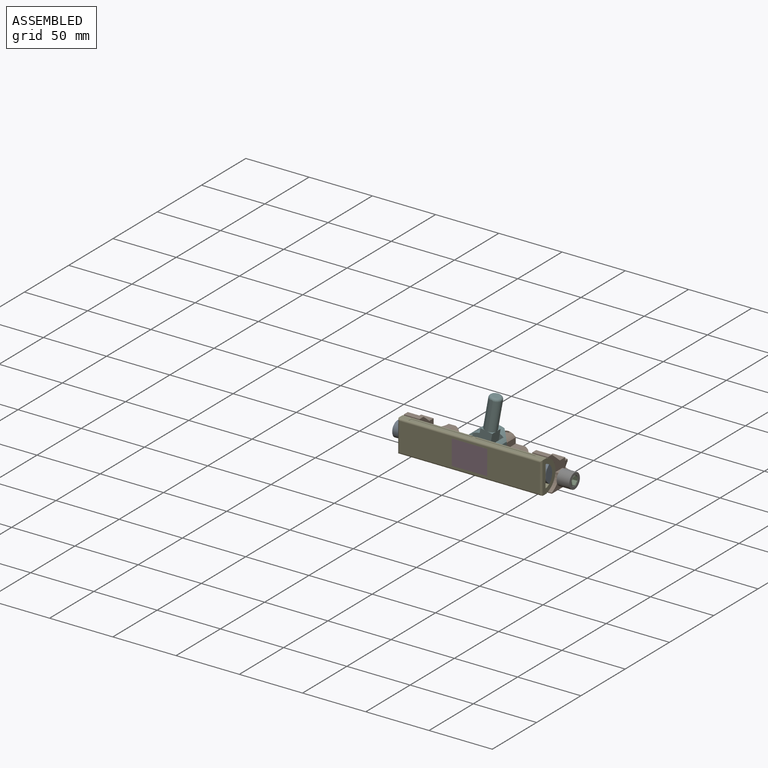
[diagram: assembled view]
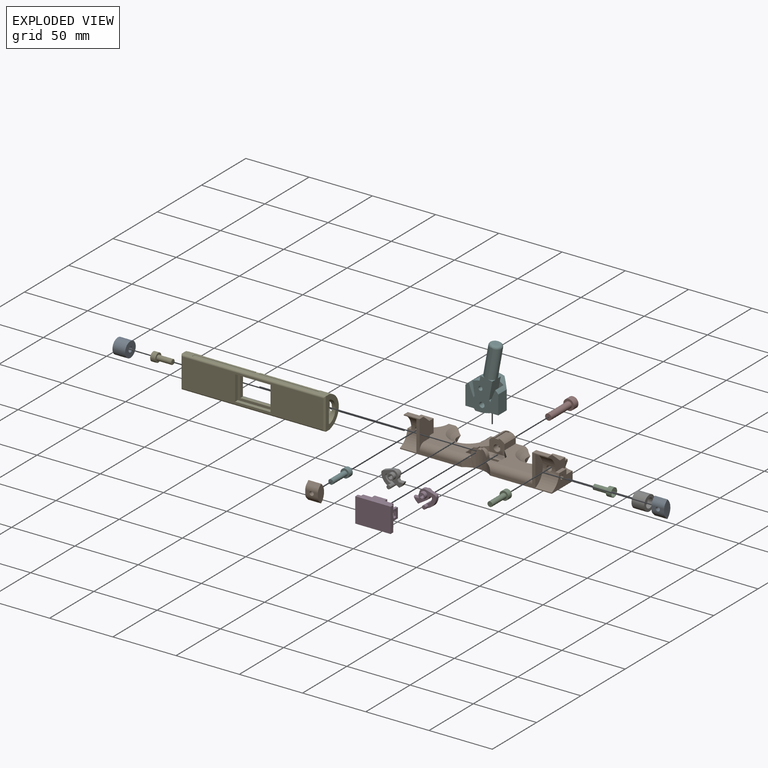
[diagram: exploded view]
GUIDED TOUR — MATED ASSEMBLY WITH SUBASSEMBLIES (Onshape document 3f575c8c6adcad1ca277dd56, AutoMate assembly 3f575c8c6adcad1ca277dd56_c90ff8e94e7f5d9ac81e3531_324395625136054d24e18bfe_default)

This assembly has 16 component occurrences arranged in 15 top-level units: 14 individual components plus 1 subassembly (S0). The tour has two levels: first the top level, where each subassembly is treated as one rigid unit; then each subassembly is toured internally in its own section (nesting deeper than one subassembly level is flattened into its subassembly's section).

Components are labeled P0..P15 across the whole record; subassembly units are labeled S0..S0. A mate is a constraint between two units; its type names the relative motion it leaves free:
  FASTENED — locks the two components together rigidly (no relative motion),
  REVOLUTE — leaves rotation about the listed axis free (a hinge),
  SLIDER — leaves translation along the listed axis free.
Axis/direction vectors are unit vectors and 'through' points are millimeter coordinates, both in the assembly's world frame.

TOP-LEVEL MATES (between units; each subassembly's internal mates are listed in its own section)
  1. REVOLUTE "Revolute 2": P15 <-> P4, axis (0.000, -1.000, 0.003) through (-16.70, -12.69, 11.49) mm
  2. FASTENED "Fastened 6": P10 <-> P9, direction (-1.000, 0.000, 0.000) through (-60.00, 0.00, 0.00) mm
  3. FASTENED "Fastened 7": P7 <-> P10, direction (-1.000, 0.000, 0.000) through (60.00, 0.00, 0.00) mm
  4. FASTENED "Fastened 3": P10 <-> P8, direction (0.000, 1.000, 0.000) through (0.00, 18.50, 0.00) mm
  5. FASTENED "Fastened 2": P10 <-> S0, direction (0.000, 0.000, 1.000) through (-13.00, -4.75, -4.00) mm
  6. FASTENED "Fastened 5": P10 <-> P11, direction (0.000, 1.000, 0.000) through (52.00, 2.00, 5.20) mm
  7. FASTENED "Fastened 8": P7 <-> P2, direction (1.000, 0.000, 0.000) through (66.00, 0.00, 0.00) mm
  8. FASTENED "Fastened 9": P13 <-> P9, direction (1.000, 0.000, 0.000) through (-66.00, 0.00, 0.00) mm
  9. FASTENED "Fastened 4": P10 <-> P14, direction (0.000, 1.000, 0.000) through (-52.00, 2.00, 5.20) mm
  10. REVOLUTE "Revolute 1": P4 <-> P10, axis (-1.000, 0.000, 0.000) through (47.00, -15.71, 5.20) mm
  11. FASTENED "Fastened 1": P12 <-> P4, direction (0.000, -1.000, 0.003) through (-12.00, -15.74, -2.50) mm
  12. REVOLUTE "Revolute 3": P3 <-> P4, axis (0.000, -1.000, 0.003) through (16.70, -12.69, 11.49) mm
  13. SLIDER "Slider 1": P14 <-> P1, axis (0.000, 1.000, 0.000) through (-52.00, -13.75, 5.20) mm

TOP-LEVEL ASSEMBLY ORDER
  1. P10 — the base component [order heuristic]
  2. P4 — core [order heuristic]
  3. S0 — core [order heuristic]
  4. P2 — core [order heuristic]
  5. P8 — core [order heuristic]
  6. P13 — core [order heuristic]
  7. P11 — core [order heuristic]
  8. P14 — core [order heuristic]
  9. P7 — core [order heuristic]
  10. P3 — core [order heuristic]
  11. P12 — core [order heuristic]
  12. P9 — core [order heuristic]
  13. P15 — core [order heuristic]
  14. P0 [order verified]
  15. P1 [order verified]
Order-tag legend:
  [order verified] — this step's position reverses a verified removal order: the component was checked to insert without passing through the ones already placed.
  [order heuristic] — the first 13 components form the assembly's core: parts whose collision-free extraction could not be verified, listed in mate-graph order.

Of the 16 component occurrences, 1 carries the full construction recipe — the FeatureScript program that regenerates the part's solid from scratch; the rest are supplied as boundary geometry only. Each toured unit is shown spotlighted twice — assembled, then exploded with a leader line back to its socket (green = recipe-attached component, orange = geometry-only, blue = subassembly unit; the rest desaturated gray).
NOTE — document 2 of 2 of this assembly tour. The two overview renders and the header above are repeated from document 1; the component sections below continue where the previous document stopped.
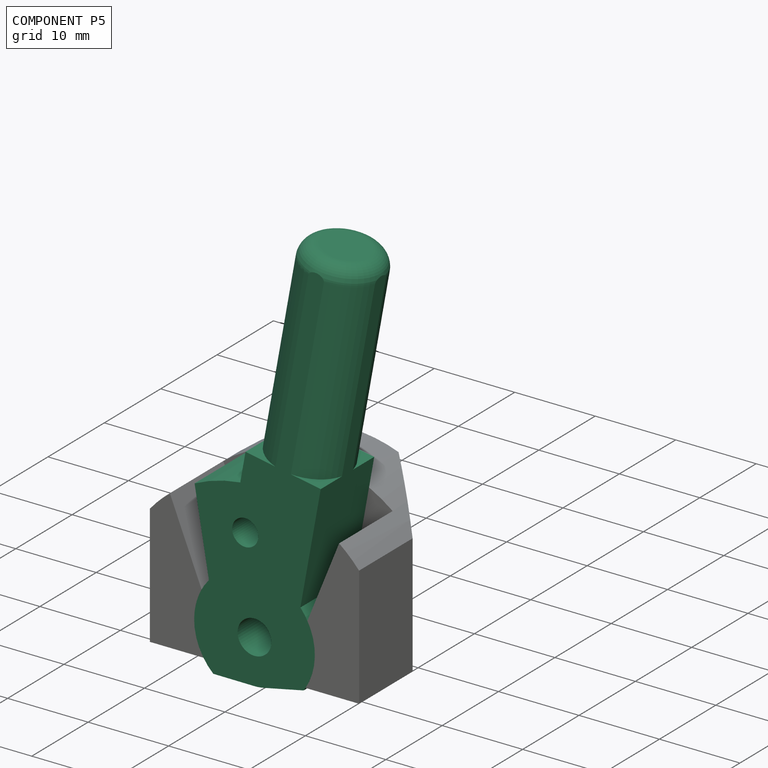
[diagram: component P5 — assembled]
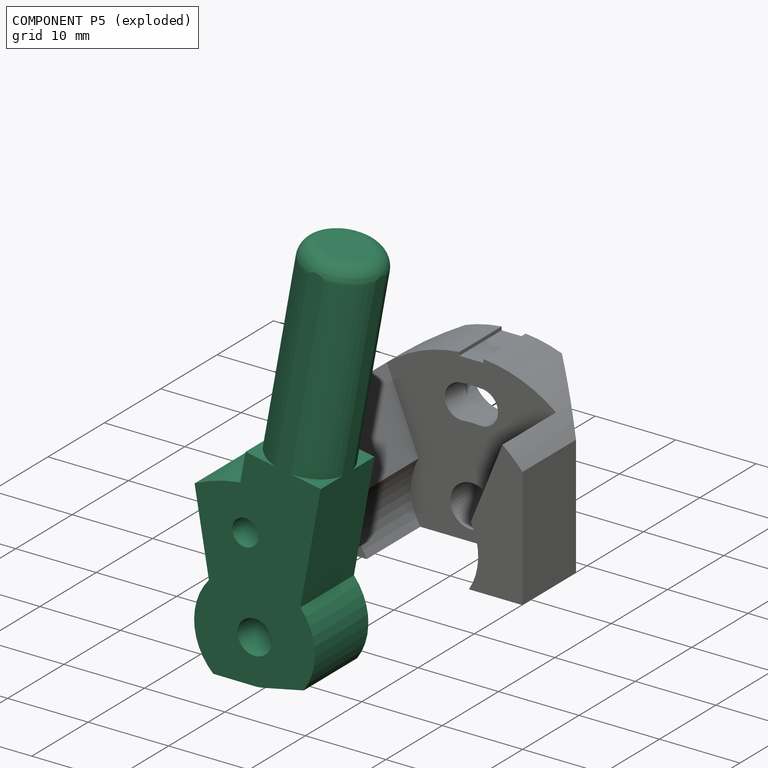
[diagram: component P5 — exploded]
COMPONENT P5 — recipe-attached (CADFS 00691312, mesh-verified: the recipe's output STEP matches this component's geometry to below the mesh-comparison resolution (tessellation chordal tolerance ~0.0824 mm)).
Held by: REVOLUTE mate "Revolute 1" to P6; REVOLUTE mate "Revolute 1" to P6.
Construction recipe (FeatureScript — the CAD program that rebuilds this solid; sketch coordinates are in the units given by the * unit suffixes, e.g. mm):

FeatureScript 1511;
import(path : "onshape/std/geometry.fs", version : "1511.0");
import(path : "onshape/std/common.fs", version : "1511.0");
const mm = millimeter;
const VERTEX = EntityType.VERTEX;
const EDGE = EntityType.EDGE;
const FACE = EntityType.FACE;
const BODY = EntityType.BODY;
function v(x, y){return vector(x, y);}
function OD(order){return orderDisambiguation(order);}
function OSD(set){return originalSetDisambiguation(set);}
function TD(topology){return topologyDisambiguation(topology);}
function TDD(query){return trueDependencyDisambiguation(query);}
function sQuery(a, b, c) {return sketchEntityQuery(a, b, c);}

annotation { "Feature Type Name" : "Feature", "Feature Type Description" : "" }
export const myFeature = defineFeature(function(context is Context, id is Id, definition is map)
    precondition{}
    {
        {
            var Q0;
            Q0=qCreatedBy(makeId("Front.planeOp"),FACE);
            var sketch = newSketch(context, id + "F0", { "sketchPlane" : qUnion([Q0])});
            skLineSegment(sketch, "E0.top", {"start": v(-21.4, -7.5) * mm, "end": v(21.4, -7.5) * mm});
            skLineSegment(sketch, "E0.left", {"start": v(-21.4, 17.9) * mm, "end": v(-21.4, -7.5) * mm, "construction": true});
            skLineSegment(sketch, "E0.right", {"start": v(21.4, 17.9) * mm, "end": v(21.4, -7.5) * mm});
            skCircle(sketch, "E1", {"center": v(0, 0) * mm, "radius": 2.1 * mm});
            skCircle(sketch, "E2", {"center": v(0, 0) * mm, "radius": 7.5 * mm});
            skLineSegment(sketch, "E3", {"start": v(0, 0) * mm, "end": v(13.06, 74.1) * mm, "construction": true});
            skLineSegment(sketch, "E4", {"start": v(10.99, 62.3) * mm, "end": v(6.3, 63.13) * mm});
            skLineSegment(sketch, "E5.MirrorCS", {"start": v(10.99, 62.3) * mm, "end": v(15.66, 61.48) * mm});
            skLineSegment(sketch, "E6", {"start": v(6.3, 63.13) * mm, "end": v(2, 38.7) * mm});
            skLineSegment(sketch, "E7", {"start": v(2, 38.7) * mm, "end": v(11.36, 37.05) * mm});
            skPoint(sketch, "E7.endSnap0", {"position": v(6.53, 37.05) * mm});
            skLineSegment(sketch, "E8", {"start": v(11.36, 37.05) * mm, "end": v(15.66, 61.48) * mm});
            skLineSegment(sketch, "E9", {"start": v(-66.42, 0) * mm, "end": v(-66.42, -3.81) * mm, "construction": true});
            skLineSegment(sketch, "E10", {"start": v(-49.76, -7.5) * mm, "end": v(-49.76, -3.5) * mm, "construction": true});
            skLineSegment(sketch, "E11", {"start": v(-49.76, -3.5) * mm, "end": v(40.68, -3.5) * mm, "construction": true});
            skLineSegment(sketch, "E12", {"start": v(-46.54, -7.5) * mm, "end": v(-46.54, -5.5) * mm, "construction": true});
            skLineSegment(sketch, "E13", {"start": v(-46.54, -5.5) * mm, "end": v(40.68, -5.5) * mm, "construction": true});
            skLineSegment(sketch, "E14", {"start": v(-21.4, -3.5) * mm, "end": v(21.4, -3.5) * mm});
            skLineSegment(sketch, "E15", {"start": v(0, 0) * mm, "end": v(27.45, 67.94) * mm, "construction": true});
            skLineSegment(sketch, "E16", {"start": v(0, 0) * mm, "end": v(3.52, 33.49) * mm, "construction": true});
            skLineSegment(sketch, "E17", {"start": v(0, 0) * mm, "end": v(-3.56, 33.9) * mm, "construction": true});
            skArc(sketch, "E18", {"start": v(-7.34, 8.85) * mm, "mid": v(0.93, 11.46) * mm, "end": v(8.67, 7.55) * mm, "construction": true});
            skCircle(sketch, "E19", {"center": v(-1.2, 11.44) * mm, "radius": 1.63 * mm});
            skCircle(sketch, "E20", {"center": v(-1.2, 11.44) * mm, "radius": 4 * mm, "construction": true});
            skArc(sketch, "E21", {"start": v(-9.57, 14.05) * mm, "mid": v(-1.2, 16.96) * mm, "end": v(7.5, 15.26) * mm, "construction": true});
            skLineSegment(sketch, "E22", {"start": v(0, 13.36) * mm, "end": v(-7.51, 13.36) * mm, "construction": true});
            skLineSegment(sketch, "E23", {"start": v(2, 38.7) * mm, "end": v(-1.84, 16.9) * mm, "construction": true});
            skLineSegment(sketch, "E24", {"start": v(11.36, 37.05) * mm, "end": v(7.51, 15.25) * mm, "construction": true});
            skLineSegment(sketch, "E25", {"start": v(3.47, 19.7) * mm, "end": v(8.15, 18.87) * mm, "construction": true});
            skLineSegment(sketch, "E26", {"start": v(8.15, 18.87) * mm, "end": v(-1.2, 20.52) * mm});
            skLineSegment(sketch, "E27", {"start": v(-1.2, 20.52) * mm, "end": v(-1.84, 16.9) * mm});
            skLineSegment(sketch, "E28", {"start": v(8.15, 18.87) * mm, "end": v(7.51, 15.25) * mm});
            skArc(sketch, "E29", {"start": v(-7.51, 15.25) * mm, "mid": v(-4.72, 16.33) * mm, "end": v(-1.78, 16.9) * mm});
            skLineSegment(sketch, "E30", {"start": v(0, 0) * mm, "end": v(53.18, -11.3) * mm, "construction": true});
            skLineSegment(sketch, "E31", {"start": v(7.51, 15.25) * mm, "end": v(5.69, 4.9) * mm});
            skLineSegment(sketch, "E32", {"start": v(0, 0) * mm, "end": v(5.69, 4.9) * mm, "construction": true});
            skLineSegment(sketch, "E33", {"start": v(0, 0) * mm, "end": v(30.44, 16.67) * mm, "construction": true});
            skLineSegment(sketch, "E34", {"start": v(-5.1, -5.5) * mm, "end": v(0, -5.5) * mm});
            skLineSegment(sketch, "E35", {"start": v(0, 0) * mm, "end": v(5.1, -5.5) * mm, "construction": true});
            skLineSegment(sketch, "E36", {"start": v(0, 0) * mm, "end": v(15.5, -10.92) * mm, "construction": true});
            skLineSegment(sketch, "E37.MirrorCS", {"start": v(0, 0) * mm, "end": v(-5.69, 4.9) * mm, "construction": true});
            skLineSegment(sketch, "E38", {"start": v(-7.51, 15.25) * mm, "end": v(-5.69, 4.9) * mm});
            skLineSegment(sketch, "E39", {"start": v(11.36, 37.05) * mm, "end": v(5.69, 4.9) * mm});
            skLineSegment(sketch, "E40", {"start": v(0, 0) * mm, "end": v(1.85, -8.7) * mm, "construction": true});
            skArc(sketch, "E41", {"start": v(0, -5.5) * mm, "mid": v(0.57, -5.47) * mm, "end": v(1.14, -5.38) * mm});
            skLineSegment(sketch, "E42", {"start": v(1.14, -5.38) * mm, "end": v(6.13, -4.32) * mm});
            skSolve(sketch);
        }
        {
            var Q0;
            {var subQ5=sQuery(id+"F0.wireOp",EDGE,"E26");Q0=makeQuery(id+"F0.imprint","IMPRINT",FACE,{"disambiguationData":[TD([[makeQuery(id+"F0.imprint","IMPRINT",EDGE,{"derivedFrom":subQ5}),1.0]])]});}
            var Q1;
            {var subQ8=sQuery(id+"F0.wireOp",EDGE,"dcc9mgXF-Am9R-e9oT-sTfc-VprgwdTA8qZ0");Q1=makeQuery(id+"F0.imprint","IMPRINT",FACE,{"disambiguationData":[TD([[makeQuery(id+"F0.imprint","IMPRINT",EDGE,{"derivedFrom":subQ8}),1.0]])]});}
            var Q2;
            Q2=makeQuery(id+"F0.imprint","IMPRINT",FACE,{"disambiguationData":[TD([[makeQuery(id+"F0.imprint","IMPRINT",EDGE,{"derivedFrom":sQuery(id+"F0.wireOp",EDGE,"E1")}),-1.0]])]});
            var Q3;
            {var subQ0=sQuery(id+"F0.wireOp",EDGE,"E34");Q3=makeQuery(id+"F0.imprint","IMPRINT",FACE,{"disambiguationData":[TD([[makeQuery(id+"F0.imprint","IMPRINT",EDGE,{"derivedFrom":subQ0}),1.0]])]});}
            extrude(context, id + "F1", {"entities" : qUnion([Q0, Q1, Q2, Q3]), "depth" : 9.5 * mm, "offsetDistance" : 25 * mm});
        }
        {
            var Q0;
            Q0=makeQuery(id+"F1.opExtrude","SWEPT_FACE",FACE,{"disambiguationData":[OSD([sQuery(id+"F0.wireOp",EDGE,"E26")])]});
            var sketch = newSketch(context, id + "F2", { "sketchPlane" : qUnion([Q0])});
            skLineSegment(sketch, "E43", {"start": v(0, 0) * mm, "end": v(0, -9.5) * mm, "construction": true});
            skLineSegment(sketch, "E44", {"start": v(-4.75, -4.75) * mm, "end": v(4.75, -4.75) * mm, "construction": true});
            skCircle(sketch, "E45", {"center": v(0, -4.75) * mm, "radius": 4.85 * mm});
            skSolve(sketch);
        }
        {
            var Q0;
            {var subQ0=sQuery(id+"F2.wireOp",EDGE,"E45");var subQ1=sQuery(id+"F0.wireOp",EDGE,"E26");var subQ9=makeQuery(id+"F1.opExtrude","CAP_EDGE",EDGE,{"disambiguationData":[OSD([subQ1])],"isStart":true});var subQ12=makeQuery(id+"F2.imprint","INTERSECT",VERTEX,{"disambiguationData":[OD(0.0)],"derivedFrom":[subQ9,subQ0]});Q0=makeQuery(id+"F2.imprint","IMPRINT",FACE,{"disambiguationData":[TD([[makeQuery(id+"F2.imprint","IMPRINT",EDGE,{"disambiguationData":[TD([[subQ12,-1.0]])],"derivedFrom":subQ9}),1.0]])]});}
            extrude(context, id + "F3", {"entities" : qUnion([Q0]), "operationType" : NewBodyOperationType.ADD, "depth" : 25 * mm, "offsetDistance" : 25 * mm});
        }
        {
            var Q0;
            {var subQ0=sQuery(id+"F2.wireOp",EDGE,"E45");var subQ1=sQuery(id+"F0.wireOp",EDGE,"E26");Q0=makeQuery(id+"F3.opExtrude","CAP_EDGE",EDGE,{"disambiguationData":[OSD([subQ0]),TDD([makeQuery(id+"F2.imprint","IMPRINT",EDGE,{"disambiguationData":[TD([[makeQuery(id+"F2.imprint","INTERSECT",VERTEX,{"disambiguationData":[OD(0.0)],"derivedFrom":[makeQuery(id+"F1.opExtrude","CAP_EDGE",EDGE,{"disambiguationData":[OSD([subQ1])],"isStart":false}),subQ0]}),1.0]])],"derivedFrom":subQ0})])],"isStart":false});}
            fillet(context, id + "F4", {"entities" : qUnion([Q0]), "radius" : 2 * mm, "tangentPropagation" : true, "allowEdgeOverflow" : false});
        }
    });
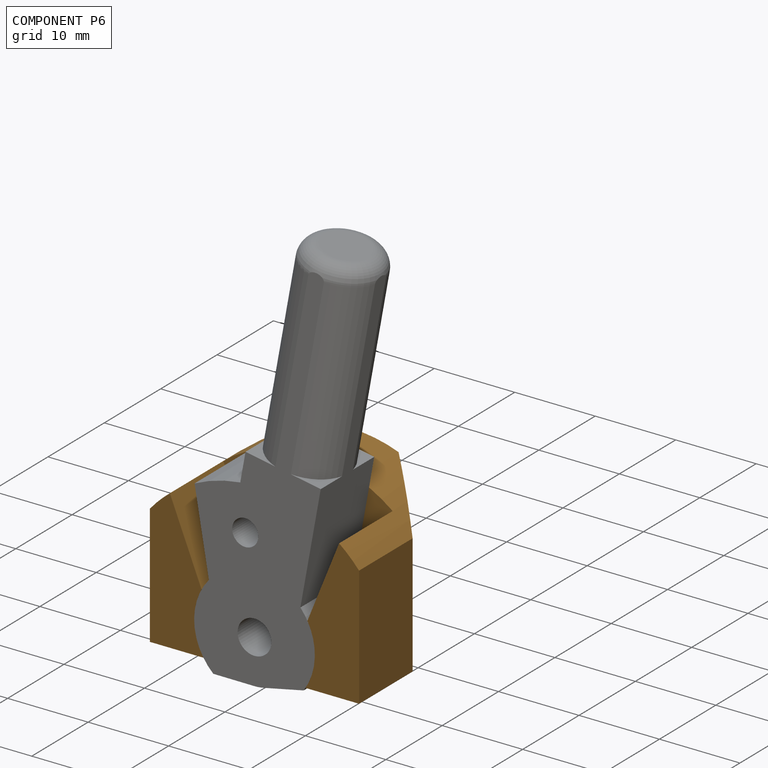
[diagram: component P6 — assembled]
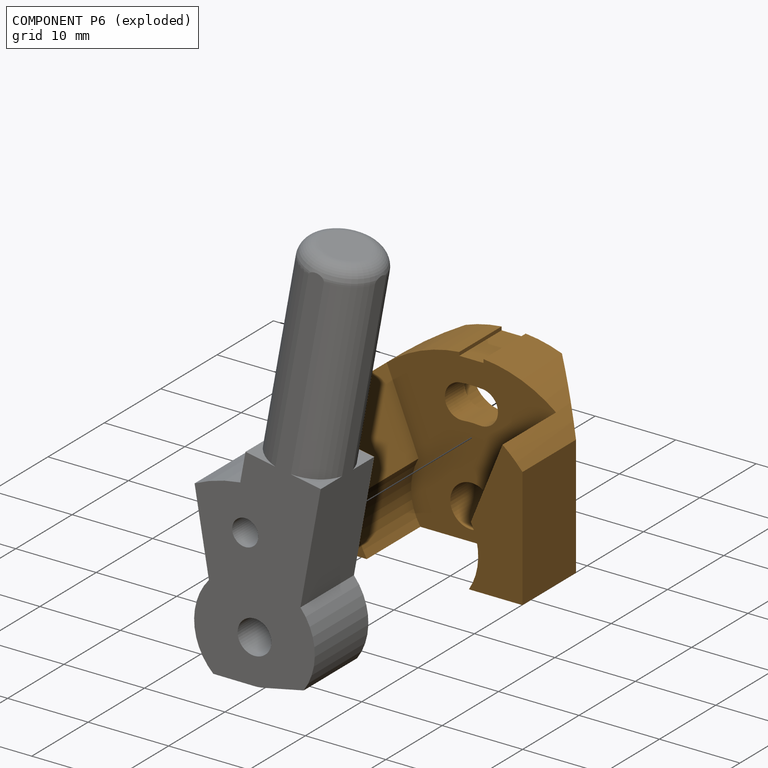
[diagram: component P6 — exploded]
COMPONENT P6 — geometry summary (no construction recipe available for this part):
  bounding box: 26.0 x 20.9 x 17.0 mm
  B-rep topology: 1 solid, 28 faces, 152 edges
  volume: 3919 mm^3 (42% of its bounding box)
  symmetry: mirror-symmetric across its x mid-plane
Held by: REVOLUTE mate "Revolute 1" to P5; REVOLUTE mate "Revolute 1" to P5.
PROVENANCE & LICENSES
Assembly (occurrences, transforms, mates, per-part STEP geometry): AutoMate dataset, Zenodo record 7776208, CC0.
Construction recipes: CADFS (HuggingFace VladPyatov/CADFS, CC-BY-4.0, layered over the ABC dataset), FeatureScript reconstruction programs keyed by ABC model id.
Join: ABC meta listings map ABC model id -> Onshape documentId; within a shared document, parts are matched by geometric signature (bounding-box dims + volume at 0.1% relative tolerance, exact B-rep face/solid counts).
Verification: 1 of this assembly's 16 components carries a recipe attachment, and every attachment is mesh-verified: the CADFS STEP and the AutoMate member STEP were compared as meshes in their shared local frame (symmetric sampled-point-to-mesh distance); worst across the 1 attachment: below the mesh-comparison resolution (tessellation chordal tolerance ~0.0824 mm) on a 55 mm part.
Renders: orthographic iso camera (az 35 / el 25); the floor grid conveys scale (grid pitch printed in each image; no ruler). In the exploded view each component is displaced by its stored offset vector: the offsets alone carry the explosion direction (mate normal/axis signs are not orientation cues and do not encode it), and separation distances are assigned per mate-chain, not proportionally to assembly-order depth.
